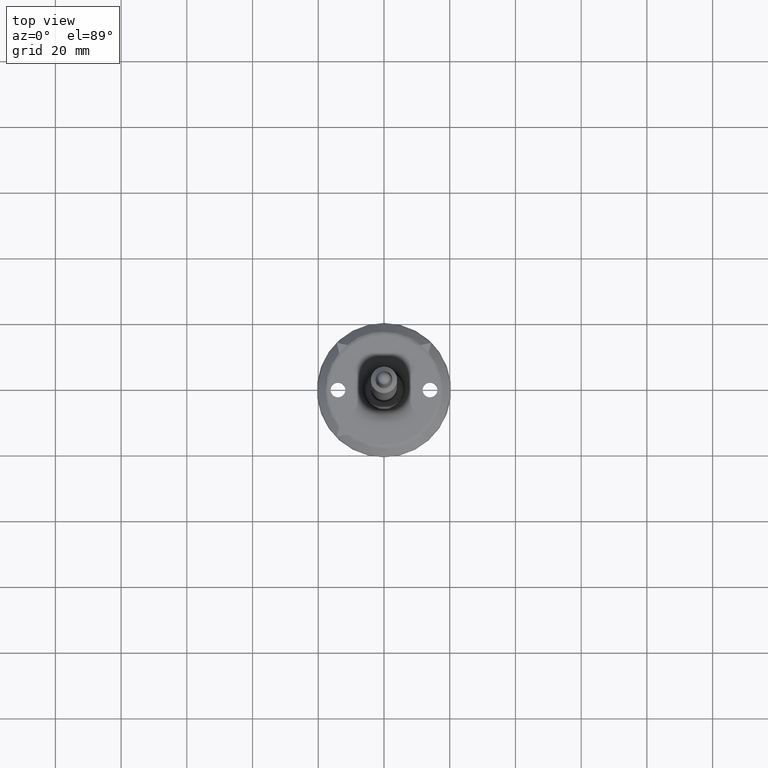
[diagram: clean part render]
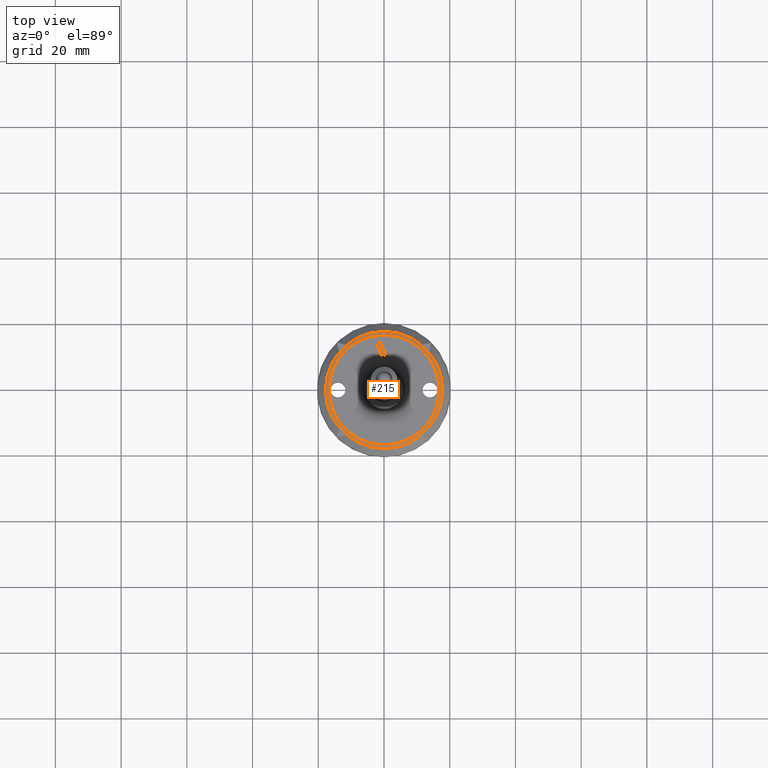
[diagram: same view with one face highlighted and labeled with its STEP entity id]
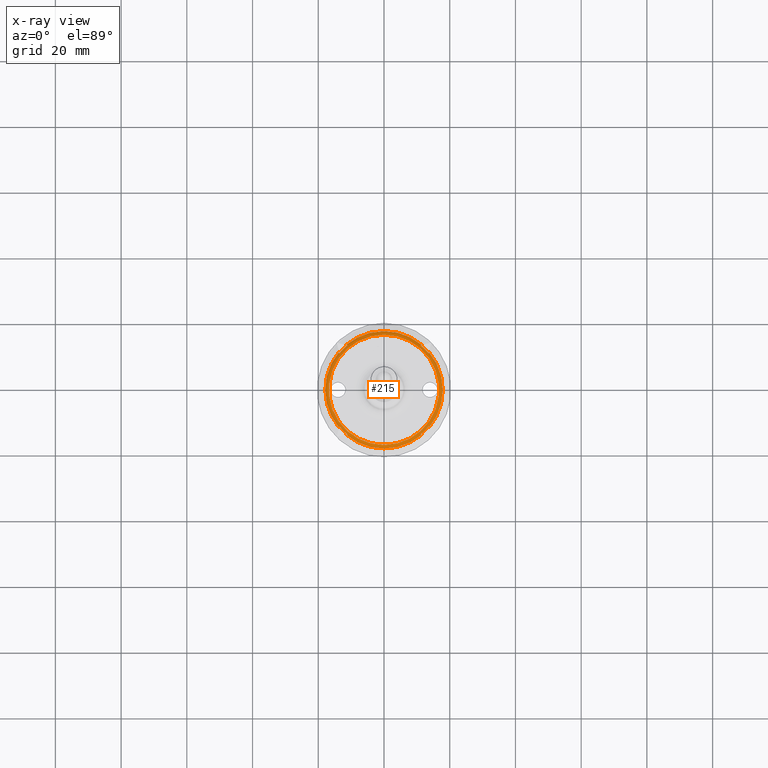
[diagram: x-ray of the same camera — body ghosted, the highlighted face saturated]
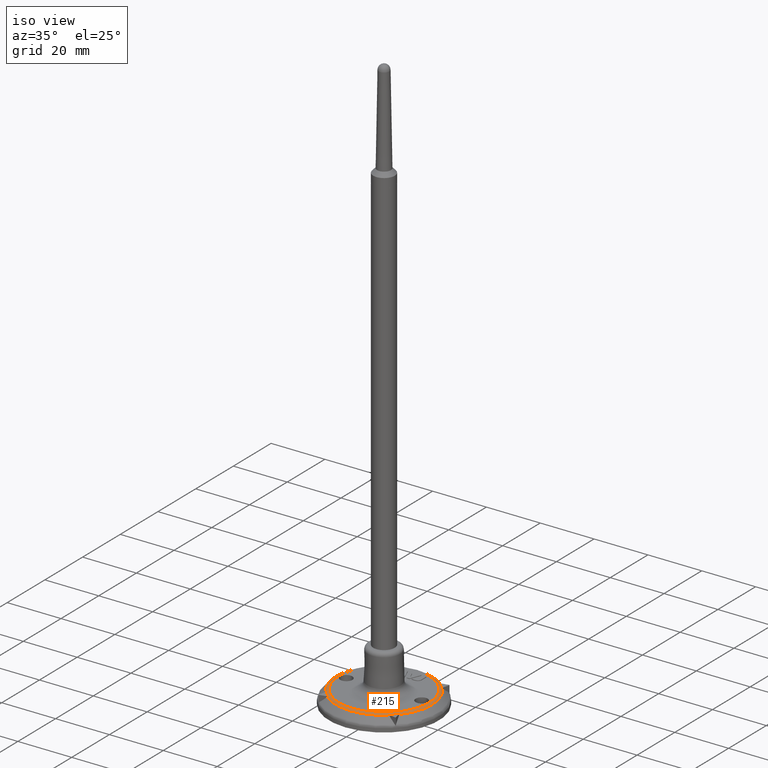
[diagram: same view with one face highlighted and labeled with its STEP entity id]
A machine part, top view. The second image highlights one B-rep face of the part: STEP entity #215.
The next image is the same camera in x-ray: the body ghosted, the highlighted face saturated — about 0% of this face is hidden behind the body in this view.
A second angle (iso view) of the same face is appended — the face is thin or edge-on in the first view.
In plain terms, the highlighted toroidal blend (fillet) surface has major radius 16.7792 mm and minor (blend) radius 1.5029 mm.
Its self-contained STEP definition (entity closure, byte-faithful):
#215 = ADVANCED_FACE( '', ( #391, #392 ), #393, .T. );
#391 = FACE_OUTER_BOUND( '', #679, .T. );
#392 = FACE_OUTER_BOUND( '', #680, .T. );
#393 = TOROIDAL_SURFACE( '', #681, 16.7792036051656, 1.50291900000000 );
#679 = EDGE_LOOP( '', ( #1207 ) );
#680 = EDGE_LOOP( '', ( #1208, #1209, #1210, #1211, #1212, #1213, #1214, #1215, #1216, #1217, #1218, #1219, #1220, #1221, #1222, #1223 ) );
#681 = AXIS2_PLACEMENT_3D( '', #1224, #1225, #1226 );
#1207 = ORIENTED_EDGE( '', *, *, #1788, .F. );
#1208 = ORIENTED_EDGE( '', *, *, #1928, .F. );
#1209 = ORIENTED_EDGE( '', *, *, #1929, .F. );
#1210 = ORIENTED_EDGE( '', *, *, #1930, .F. );
#1211 = ORIENTED_EDGE( '', *, *, #1931, .F. );
#1212 = ORIENTED_EDGE( '', *, *, #1932, .F. );
#1213 = ORIENTED_EDGE( '', *, *, #1917, .F. );
#1214 = ORIENTED_EDGE( '', *, *, #1933, .F. );
#1215 = ORIENTED_EDGE( '', *, *, #1934, .F. );
#1216 = ORIENTED_EDGE( '', *, *, #1935, .F. );
#1217 = ORIENTED_EDGE( '', *, *, #1936, .F. );
#1218 = ORIENTED_EDGE( '', *, *, #1925, .F. );
#1219 = ORIENTED_EDGE( '', *, *, #1937, .F. );
#1220 = ORIENTED_EDGE( '', *, *, #1922, .F. );
#1221 = ORIENTED_EDGE( '', *, *, #1938, .F. );
#1222 = ORIENTED_EDGE( '', *, *, #1939, .F. );
#1223 = ORIENTED_EDGE( '', *, *, #1940, .F. );
#1224 = CARTESIAN_POINT( '', ( -3.93322166121250E-032, 6.42365058606089E-016, 3.49698799999999 ) );
#1225 = DIRECTION( '', ( 1.12474554136660E-032, -1.83690953073357E-016, -1.00000000000000 ) );
#1226 = DIRECTION( '', ( -6.12303176911189E-017, 1.00000000000000, -1.83690953073357E-016 ) );
#1788 = EDGE_CURVE( '', #2071, #2071, #2072, .F. );
#1917 = EDGE_CURVE( '', #2293, #2295, #2296, .F. );
#1922 = EDGE_CURVE( '', #2302, #2304, #2305, .T. );
#1925 = EDGE_CURVE( '', #2307, #2309, #2310, .T. );
#1928 = EDGE_CURVE( '', #2314, #2315, #2316, .T. );
#1929 = EDGE_CURVE( '', #2317, #2314, #2318, .F. );
#1930 = EDGE_CURVE( '', #2319, #2317, #2320, .T. );
#1931 = EDGE_CURVE( '', #2321, #2319, #2322, .T. );
#1932 = EDGE_CURVE( '', #2295, #2321, #2323, .T. );
#1933 = EDGE_CURVE( '', #2324, #2293, #2325, .T. );
#1934 = EDGE_CURVE( '', #2326, #2324, #2327, .T. );
#1935 = EDGE_CURVE( '', #2328, #2326, #2329, .T. );
#1936 = EDGE_CURVE( '', #2309, #2328, #2330, .F. );
#1937 = EDGE_CURVE( '', #2304, #2307, #2331, .T. );
#1938 = EDGE_CURVE( '', #2332, #2302, #2333, .F. );
#1939 = EDGE_CURVE( '', #2334, #2332, #2335, .T. );
#1940 = EDGE_CURVE( '', #2315, #2334, #2336, .T. );
#2071 = VERTEX_POINT( '', #2539 );
#2072 = CIRCLE( '', #2540, 16.7792036051656 );
#2293 = VERTEX_POINT( '', #2924 );
#2295 = VERTEX_POINT( '', #2929 );
#2296 = CIRCLE( '', #2930, 17.8415794446095 );
#2302 = VERTEX_POINT( '', #2942 );
#2304 = VERTEX_POINT( '', #2947 );
#2305 = B_SPLINE_CURVE_WITH_KNOTS( '', 3, ( #2948, #2949, #2950, #2951 ), .UNSPECIFIED., .F., .F., ( 4, 4 ), ( 0.000000000000000, 0.000461087044999416 ), .UNSPECIFIED. );
#2307 = VERTEX_POINT( '', #2954 );
#2309 = VERTEX_POINT( '', #2957 );
#2310 = B_SPLINE_CURVE_WITH_KNOTS( '', 3, ( #2958, #2959, #2960, #2961 ), .UNSPECIFIED., .F., .F., ( 4, 4 ), ( 0.000000000000000, 0.000461087055120101 ), .UNSPECIFIED. );
#2314 = VERTEX_POINT( '', #2971 );
#2315 = VERTEX_POINT( '', #2972 );
#2316 = B_SPLINE_CURVE_WITH_KNOTS( '', 3, ( #2973, #2974, #2975, #2976 ), .UNSPECIFIED., .F., .F., ( 4, 4 ), ( 0.000000000000000, 0.000461087031759523 ), .UNSPECIFIED. );
#2317 = VERTEX_POINT( '', #2977 );
#2318 = CIRCLE( '', #2978, 17.8415794446095 );
#2319 = VERTEX_POINT( '', #2979 );
#2320 = B_SPLINE_CURVE_WITH_KNOTS( '', 3, ( #2980, #2981, #2982, #2983 ), .UNSPECIFIED., .F., .F., ( 4, 4 ), ( 0.000000000000000, 0.000461086959000810 ), .UNSPECIFIED. );
#2321 = VERTEX_POINT( '', #2984 );
#2322 = CIRCLE( '', #2985, 17.5289913355756 );
#2323 = B_SPLINE_CURVE_WITH_KNOTS( '', 3, ( #2986, #2987, #2988, #2989 ), .UNSPECIFIED., .F., .F., ( 4, 4 ), ( 0.000000000000000, 0.000461086982641299 ), .UNSPECIFIED. );
#2324 = VERTEX_POINT( '', #2990 );
#2325 = B_SPLINE_CURVE_WITH_KNOTS( '', 3, ( #2991, #2992, #2993, #2994 ), .UNSPECIFIED., .F., .F., ( 4, 4 ), ( 0.000000000000000, 0.000461086959000808 ), .UNSPECIFIED. );
#2326 = VERTEX_POINT( '', #2995 );
#2327 = CIRCLE( '', #2996, 17.5289913355756 );
#2328 = VERTEX_POINT( '', #2997 );
#2329 = B_SPLINE_CURVE_WITH_KNOTS( '', 3, ( #2998, #2999, #3000, #3001 ), .UNSPECIFIED., .F., .F., ( 4, 4 ), ( 0.000000000000000, 0.000461087055120099 ), .UNSPECIFIED. );
#2330 = CIRCLE( '', #3002, 17.8415794446095 );
#2331 = CIRCLE( '', #3003, 17.5289913355756 );
#2332 = VERTEX_POINT( '', #3004 );
#2333 = CIRCLE( '', #3005, 17.8415794446095 );
#2334 = VERTEX_POINT( '', #3006 );
#2335 = B_SPLINE_CURVE_WITH_KNOTS( '', 3, ( #3007, #3008, #3009, #3010 ), .UNSPECIFIED., .F., .F., ( 4, 4 ), ( 0.000000000000000, 0.000461087077301471 ), .UNSPECIFIED. );
#2336 = CIRCLE( '', #3011, 17.5289913355756 );
#2539 = CARTESIAN_POINT( '', ( -1.02739596734826E-015, 16.7792036051656, 4.99990699999998 ) );
#2540 = AXIS2_PLACEMENT_3D( '', #3313, #3314, #3315 );
#2924 = CARTESIAN_POINT( '', ( -13.6898716455001, -11.4415633288482, 4.56006047933854 ) );
#2929 = CARTESIAN_POINT( '', ( -13.6898716497305, 11.4415633237865, 4.56006047933853 ) );
#2930 = AXIS2_PLACEMENT_3D( '', #3482, #3483, #3484 );
#2942 = CARTESIAN_POINT( '', ( 13.6898715559076, -11.4415634360459, 4.56006047933853 ) );
#2947 = CARTESIAN_POINT( '', ( 13.6012696779304, -11.0576218234707, 4.79951780000000 ) );
#2948 = CARTESIAN_POINT( '', ( 13.6898715559076, -11.4415634360459, 4.56006047933854 ) );
#2949 = CARTESIAN_POINT( '', ( 13.6626250345439, -11.3234951333387, 4.65661906492836 ) );
#2950 = CARTESIAN_POINT( '', ( 13.6329619470431, -11.1949550401826, 4.73549321139625 ) );
#2951 = CARTESIAN_POINT( '', ( 13.6012696779303, -11.0576218234706, 4.79951779999989 ) );
#2954 = CARTESIAN_POINT( '', ( 11.0576217295459, -13.6012697542898, 4.79951780000000 ) );
#2957 = CARTESIAN_POINT( '', ( 11.4415633565678, -13.6898716223329, 4.56006047933853 ) );
#2958 = CARTESIAN_POINT( '', ( 11.0576217295459, -13.6012697542898, 4.79951780000000 ) );
#2959 = CARTESIAN_POINT( '', ( 11.1949549510102, -13.6329620197534, 4.73549321164471 ) );
#2960 = CARTESIAN_POINT( '', ( 11.3234950490486, -13.6626251039389, 4.65661906531081 ) );
#2961 = CARTESIAN_POINT( '', ( 11.4415633565678, -13.6898716223329, 4.56006047933853 ) );
#2971 = CARTESIAN_POINT( '', ( 11.4415634122110, 13.6898715758281, 4.56006047933853 ) );
#2972 = CARTESIAN_POINT( '', ( 11.0576218193622, 13.6012696812705, 4.79951780000000 ) );
#2973 = CARTESIAN_POINT( '', ( 11.4415634122110, 13.6898715758281, 4.56006047933853 ) );
#2974 = CARTESIAN_POINT( '', ( 11.3234951160532, 13.6626250494772, 4.65661906442802 ) );
#2975 = CARTESIAN_POINT( '', ( 11.1949550295612, 13.6329619564393, 4.73549321107135 ) );
#2976 = CARTESIAN_POINT( '', ( 11.0576218193621, 13.6012696812705, 4.79951779999989 ) );
#2977 = CARTESIAN_POINT( '', ( -11.4415633288482, 13.6898716455001, 4.56006047933853 ) );
#2978 = AXIS2_PLACEMENT_3D( '', #3490, #3491, #3492 );
#2979 = CARTESIAN_POINT( '', ( -11.0576218440961, 13.6012696611623, 4.79951780000000 ) );
#2980 = CARTESIAN_POINT( '', ( -11.0576218440961, 13.6012696611623, 4.79951780000000 ) );
#2981 = CARTESIAN_POINT( '', ( -11.1949550186142, 13.6329619691336, 4.73549320928601 ) );
#2982 = CARTESIAN_POINT( '', ( -11.3234950685874, 13.6626250921531, 4.65661906167849 ) );
#2983 = CARTESIAN_POINT( '', ( -11.4415633288482, 13.6898716455001, 4.56006047933853 ) );
#2984 = CARTESIAN_POINT( '', ( -13.6012696936621, 11.0576218041201, 4.79951780000000 ) );
#2985 = AXIS2_PLACEMENT_3D( '', #3493, #3494, #3495 );
#2986 = CARTESIAN_POINT( '', ( -13.6898716497305, 11.4415633237865, 4.56006047933853 ) );
#2987 = CARTESIAN_POINT( '', ( -13.6626251048777, 11.3234950519262, 4.65661906257186 ) );
#2988 = CARTESIAN_POINT( '', ( -13.6329619912978, 11.1949549901571, 4.73549320986603 ) );
#2989 = CARTESIAN_POINT( '', ( -13.6012696936621, 11.0576218041201, 4.79951779999989 ) );
#2990 = CARTESIAN_POINT( '', ( -13.6012696611623, -11.0576218440961, 4.79951780000000 ) );
#2991 = CARTESIAN_POINT( '', ( -13.6012696611623, -11.0576218440961, 4.79951780000000 ) );
#2992 = CARTESIAN_POINT( '', ( -13.6329619691336, -11.1949550186142, 4.73549320928602 ) );
#2993 = CARTESIAN_POINT( '', ( -13.6626250921531, -11.3234950685874, 4.65661906167849 ) );
#2994 = CARTESIAN_POINT( '', ( -13.6898716455001, -11.4415633288482, 4.56006047933853 ) );
#2995 = CARTESIAN_POINT( '', ( -11.0576217295459, -13.6012697542898, 4.79951780000000 ) );
#2996 = AXIS2_PLACEMENT_3D( '', #3496, #3497, #3498 );
#2997 = CARTESIAN_POINT( '', ( -11.4415633565678, -13.6898716223329, 4.56006047933853 ) );
#2998 = CARTESIAN_POINT( '', ( -11.4415633565678, -13.6898716223329, 4.56006047933854 ) );
#2999 = CARTESIAN_POINT( '', ( -11.3234950490486, -13.6626251039389, 4.65661906531081 ) );
#3000 = CARTESIAN_POINT( '', ( -11.1949549510101, -13.6329620197534, 4.73549321164461 ) );
#3001 = CARTESIAN_POINT( '', ( -11.0576217295458, -13.6012697542898, 4.79951779999989 ) );
#3002 = AXIS2_PLACEMENT_3D( '', #3499, #3500, #3501 );
#3003 = AXIS2_PLACEMENT_3D( '', #3502, #3503, #3504 );
#3004 = CARTESIAN_POINT( '', ( 13.6898716169867, 11.4415633629646, 4.56006047933853 ) );
#3005 = AXIS2_PLACEMENT_3D( '', #3505, #3506, #3507 );
#3006 = CARTESIAN_POINT( '', ( 13.6012697757808, 11.0576217031112, 4.79951780000000 ) );
#3007 = CARTESIAN_POINT( '', ( 13.6012697757808, 11.0576217031112, 4.79951780000000 ) );
#3008 = CARTESIAN_POINT( '', ( 13.6329620314349, 11.1949549354093, 4.73549321218902 ) );
#3009 = CARTESIAN_POINT( '', ( 13.6626251066587, 11.3234950445397, 4.65661906614903 ) );
#3010 = CARTESIAN_POINT( '', ( 13.6898716169867, 11.4415633629646, 4.56006047933853 ) );
#3011 = AXIS2_PLACEMENT_3D( '', #3508, #3509, #3510 );
#3313 = CARTESIAN_POINT( '', ( -5.62362310549765E-032, 9.18437682108145E-016, 4.99990699999999 ) );
#3314 = DIRECTION( '', ( 1.12474554136660E-032, -1.83690953073357E-016, -1.00000000000000 ) );
#3315 = DIRECTION( '', ( -6.12303176911189E-017, 1.00000000000000, -1.83690953073357E-016 ) );
#3482 = CARTESIAN_POINT( '', ( -5.12890769249807E-032, 8.37641855521842E-016, 4.56006047933853 ) );
#3483 = DIRECTION( '', ( -1.12474554136660E-032, 1.83690953073357E-016, 1.00000000000000 ) );
#3484 = DIRECTION( '', ( 6.12303176911189E-017, -1.00000000000000, 1.83690953073357E-016 ) );
#3490 = CARTESIAN_POINT( '', ( -5.12890769249807E-032, 8.37641855521842E-016, 4.56006047933853 ) );
#3491 = DIRECTION( '', ( -1.12474554136660E-032, 1.83690953073357E-016, 1.00000000000000 ) );
#3492 = DIRECTION( '', ( 6.12303176911189E-017, -1.00000000000000, 1.83690953073357E-016 ) );
#3493 = CARTESIAN_POINT( '', ( -5.39823624625965E-032, 8.81627998974540E-016, 4.79951780000000 ) );
#3494 = DIRECTION( '', ( 1.12474554136660E-032, -1.83690953073357E-016, -1.00000000000000 ) );
#3495 = DIRECTION( '', ( -6.12303176911189E-017, 1.00000000000000, -1.83690953073357E-016 ) );
#3496 = CARTESIAN_POINT( '', ( -5.39823624625965E-032, 8.81627998974540E-016, 4.79951780000000 ) );
#3497 = DIRECTION( '', ( 1.12474554136660E-032, -1.83690953073357E-016, -1.00000000000000 ) );
#3498 = DIRECTION( '', ( -6.12303176911189E-017, 1.00000000000000, -1.83690953073357E-016 ) );
#3499 = CARTESIAN_POINT( '', ( -5.12890769249807E-032, 8.37641855521842E-016, 4.56006047933853 ) );
#3500 = DIRECTION( '', ( -1.12474554136660E-032, 1.83690953073357E-016, 1.00000000000000 ) );
#3501 = DIRECTION( '', ( 6.12303176911189E-017, -1.00000000000000, 1.83690953073357E-016 ) );
#3502 = CARTESIAN_POINT( '', ( -5.39823624625965E-032, 8.81627998974540E-016, 4.79951780000000 ) );
#3503 = DIRECTION( '', ( 1.12474554136660E-032, -1.83690953073357E-016, -1.00000000000000 ) );
#3504 = DIRECTION( '', ( -6.12303176911189E-017, 1.00000000000000, -1.83690953073357E-016 ) );
#3505 = CARTESIAN_POINT( '', ( -5.12890769249807E-032, 8.37641855521842E-016, 4.56006047933853 ) );
#3506 = DIRECTION( '', ( -1.12474554136660E-032, 1.83690953073357E-016, 1.00000000000000 ) );
#3507 = DIRECTION( '', ( 6.12303176911189E-017, -1.00000000000000, 1.83690953073357E-016 ) );
#3508 = CARTESIAN_POINT( '', ( -5.39823624625965E-032, 8.81627998974540E-016, 4.79951780000000 ) );
#3509 = DIRECTION( '', ( 1.12474554136660E-032, -1.83690953073357E-016, -1.00000000000000 ) );
#3510 = DIRECTION( '', ( -6.12303176911189E-017, 1.00000000000000, -1.83690953073357E-016 ) );